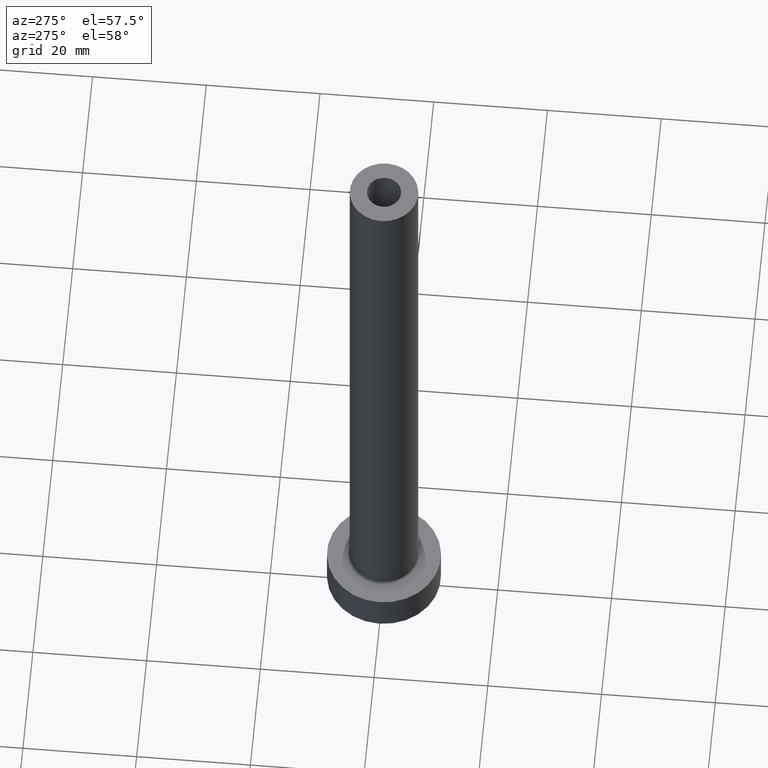
[diagram: clean part render]
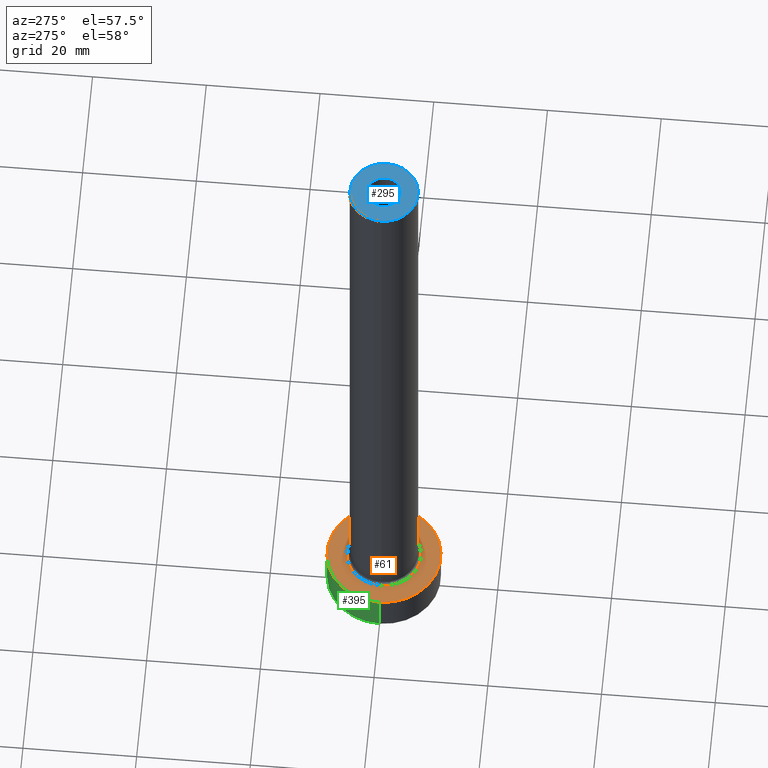
[diagram: same view with three faces highlighted in distinct colors, each labeled with its STEP entity id]
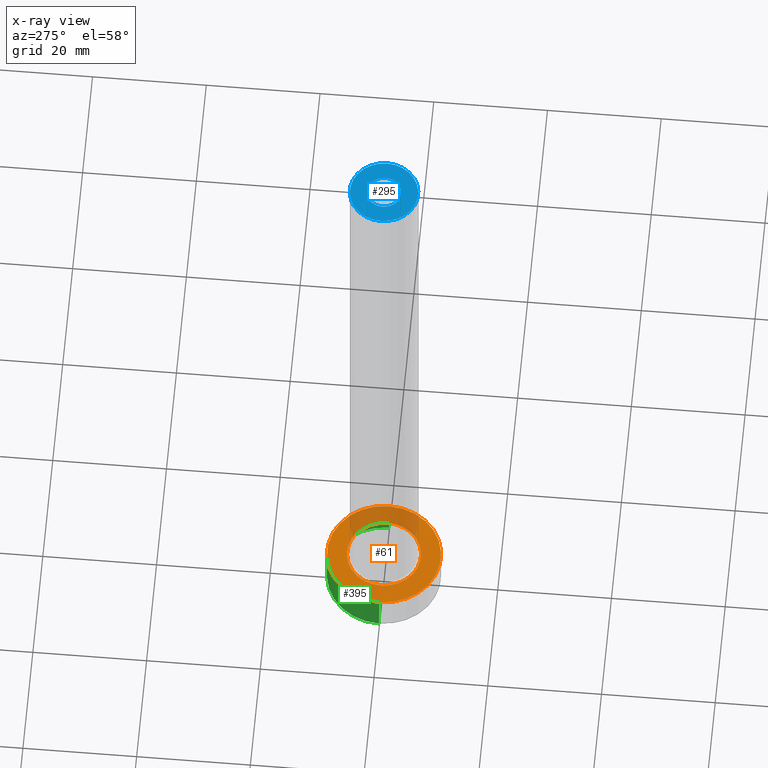
[diagram: x-ray of the same camera — body ghosted, the three highlighted faces saturated]
A machine part, auxiliary view with three faces highlighted in distinct colors.
The next image is the same camera in x-ray (body ghosted, the three faces saturated) — at least one of them is partly hidden behind the body in this view.
Their STEP definitions:

[orange] entity #61 — the highlighted planar face has unit normal (0, 0, 1).
#25 = PLANE ( 'NONE',  #260 ) ;
#48 = CIRCLE ( 'NONE', #320, 6.500000000000000888 ) ;
#50 = ORIENTED_EDGE ( 'NONE', *, *, #279, .T. ) ;
#51 = VERTEX_POINT ( 'NONE', #236 ) ;
#53 = CARTESIAN_POINT ( 'NONE',  ( 0.000000000000000000, 0.000000000000000000, 7.000000000000000000 ) ) ;
#61 = ADVANCED_FACE ( 'NONE', ( #412, #96 ), #25, .T. ) ;
#76 = VERTEX_POINT ( 'NONE', #169 ) ;
#84 = CARTESIAN_POINT ( 'NONE',  ( -10.00000000000000000, 0.000000000000000000, 7.000000000000000000 ) ) ;
#95 = DIRECTION ( 'NONE',  ( 0.000000000000000000, 0.000000000000000000, 1.000000000000000000 ) ) ;
#96 = FACE_OUTER_BOUND ( 'NONE', #121, .T. ) ;
#121 = EDGE_LOOP ( 'NONE', ( #447, #367 ) ) ;
#127 = CIRCLE ( 'NONE', #362, 6.500000000000000888 ) ;
#129 = AXIS2_PLACEMENT_3D ( 'NONE', #312, #95, #411 ) ;
#150 = DIRECTION ( 'NONE',  ( -0.000000000000000000, -0.000000000000000000, -1.000000000000000000 ) ) ;
#169 = CARTESIAN_POINT ( 'NONE',  ( -6.500000000000000888, 7.960204194457796463E-16, 7.000000000000002665 ) ) ;
#198 = DIRECTION ( 'NONE',  ( 0.000000000000000000, 0.000000000000000000, 1.000000000000000000 ) ) ;
#200 = DIRECTION ( 'NONE',  ( 1.000000000000000000, 0.000000000000000000, -0.000000000000000000 ) ) ;
#201 = EDGE_CURVE ( 'NONE', #274, #51, #403, .T. ) ;
#215 = DIRECTION ( 'NONE',  ( 1.000000000000000000, 0.000000000000000000, 0.000000000000000000 ) ) ;
#227 = VERTEX_POINT ( 'NONE', #287 ) ;
#232 = EDGE_CURVE ( 'NONE', #76, #227, #48, .T. ) ;
#236 = CARTESIAN_POINT ( 'NONE',  ( 10.00000000000000000, 1.224646799147353256E-15, 7.000000000000000000 ) ) ;
#237 = EDGE_LOOP ( 'NONE', ( #50, #423 ) ) ;
#248 = DIRECTION ( 'NONE',  ( 1.000000000000000000, 0.000000000000000000, 0.000000000000000000 ) ) ;
#260 = AXIS2_PLACEMENT_3D ( 'NONE', #53, #198, #200 ) ;
#274 = VERTEX_POINT ( 'NONE', #84 ) ;
#279 = EDGE_CURVE ( 'NONE', #227, #76, #127, .T. ) ;
#287 = CARTESIAN_POINT ( 'NONE',  ( 6.500000000000000888, 0.000000000000000000, 7.000000000000002665 ) ) ;
#288 = CARTESIAN_POINT ( 'NONE',  ( 0.000000000000000000, 0.000000000000000000, 7.000000000000000000 ) ) ;
#312 = CARTESIAN_POINT ( 'NONE',  ( 0.000000000000000000, 0.000000000000000000, 7.000000000000000000 ) ) ;
#320 = AXIS2_PLACEMENT_3D ( 'NONE', #355, #150, #248 ) ;
#322 = CIRCLE ( 'NONE', #129, 10.00000000000000000 ) ;
#331 = DIRECTION ( 'NONE',  ( 1.000000000000000000, 0.000000000000000000, 0.000000000000000000 ) ) ;
#350 = AXIS2_PLACEMENT_3D ( 'NONE', #288, #387, #215 ) ;
#355 = CARTESIAN_POINT ( 'NONE',  ( 0.000000000000000000, 0.000000000000000000, 7.000000000000000000 ) ) ;
#361 = EDGE_CURVE ( 'NONE', #51, #274, #322, .T. ) ;
#362 = AXIS2_PLACEMENT_3D ( 'NONE', #434, #405, #331 ) ;
#367 = ORIENTED_EDGE ( 'NONE', *, *, #361, .T. ) ;
#387 = DIRECTION ( 'NONE',  ( 0.000000000000000000, 0.000000000000000000, 1.000000000000000000 ) ) ;
#403 = CIRCLE ( 'NONE', #350, 10.00000000000000000 ) ;
#405 = DIRECTION ( 'NONE',  ( -0.000000000000000000, -0.000000000000000000, -1.000000000000000000 ) ) ;
#411 = DIRECTION ( 'NONE',  ( 1.000000000000000000, 0.000000000000000000, 0.000000000000000000 ) ) ;
#412 = FACE_BOUND ( 'NONE', #237, .T. ) ;
#423 = ORIENTED_EDGE ( 'NONE', *, *, #232, .T. ) ;
#434 = CARTESIAN_POINT ( 'NONE',  ( 0.000000000000000000, 0.000000000000000000, 7.000000000000000000 ) ) ;
#447 = ORIENTED_EDGE ( 'NONE', *, *, #201, .T. ) ;

[blue] entity #295 — the highlighted planar face has unit normal (0, 0, 1).
#19 = AXIS2_PLACEMENT_3D ( 'NONE', #156, #424, #393 ) ;
#32 = CARTESIAN_POINT ( 'NONE',  ( 0.000000000000000000, 0.000000000000000000, 125.0000000000000000 ) ) ;
#34 = CARTESIAN_POINT ( 'NONE',  ( 0.000000000000000000, 0.000000000000000000, 125.0000000000000000 ) ) ;
#64 = DIRECTION ( 'NONE',  ( 1.000000000000000000, 0.000000000000000000, 0.000000000000000000 ) ) ;
#70 = DIRECTION ( 'NONE',  ( 1.000000000000000000, 0.000000000000000000, 0.000000000000000000 ) ) ;
#81 = PLANE ( 'NONE',  #441 ) ;
#83 = CIRCLE ( 'NONE', #223, 6.000000000000000888 ) ;
#104 = DIRECTION ( 'NONE',  ( 0.000000000000000000, 0.000000000000000000, 1.000000000000000000 ) ) ;
#142 = EDGE_LOOP ( 'NONE', ( #193, #245 ) ) ;
#156 = CARTESIAN_POINT ( 'NONE',  ( 0.000000000000000000, 0.000000000000000000, 125.0000000000000000 ) ) ;
#158 = EDGE_CURVE ( 'NONE', #240, #160, #202, .T. ) ;
#160 = VERTEX_POINT ( 'NONE', #358 ) ;
#164 = CARTESIAN_POINT ( 'NONE',  ( 0.000000000000000000, 0.000000000000000000, 125.0000000000000000 ) ) ;
#168 = AXIS2_PLACEMENT_3D ( 'NONE', #164, #299, #437 ) ;
#184 = DIRECTION ( 'NONE',  ( 0.000000000000000000, 0.000000000000000000, 1.000000000000000000 ) ) ;
#193 = ORIENTED_EDGE ( 'NONE', *, *, #239, .T. ) ;
#199 = ORIENTED_EDGE ( 'NONE', *, *, #318, .F. ) ;
#202 = CIRCLE ( 'NONE', #455, 3.000000000000000444 ) ;
#217 = CARTESIAN_POINT ( 'NONE',  ( -6.000000000000000888, 0.000000000000000000, 125.0000000000000000 ) ) ;
#218 = VERTEX_POINT ( 'NONE', #217 ) ;
#223 = AXIS2_PLACEMENT_3D ( 'NONE', #32, #104, #64 ) ;
#230 = CIRCLE ( 'NONE', #19, 6.000000000000000888 ) ;
#235 = DIRECTION ( 'NONE',  ( 1.000000000000000000, 0.000000000000000000, -0.000000000000000000 ) ) ;
#239 = EDGE_CURVE ( 'NONE', #218, #349, #83, .T. ) ;
#240 = VERTEX_POINT ( 'NONE', #461 ) ;
#245 = ORIENTED_EDGE ( 'NONE', *, *, #436, .T. ) ;
#263 = EDGE_LOOP ( 'NONE', ( #199, #383 ) ) ;
#266 = DIRECTION ( 'NONE',  ( 0.000000000000000000, 0.000000000000000000, 1.000000000000000000 ) ) ;
#295 = ADVANCED_FACE ( 'NONE', ( #401, #397 ), #81, .T. ) ;
#299 = DIRECTION ( 'NONE',  ( 0.000000000000000000, 0.000000000000000000, 1.000000000000000000 ) ) ;
#318 = EDGE_CURVE ( 'NONE', #160, #240, #420, .T. ) ;
#349 = VERTEX_POINT ( 'NONE', #446 ) ;
#358 = CARTESIAN_POINT ( 'NONE',  ( -3.000000000000000444, 0.000000000000000000, 125.0000000000000000 ) ) ;
#366 = CARTESIAN_POINT ( 'NONE',  ( 0.000000000000000000, 0.000000000000000000, 125.0000000000000000 ) ) ;
#383 = ORIENTED_EDGE ( 'NONE', *, *, #158, .F. ) ;
#393 = DIRECTION ( 'NONE',  ( 1.000000000000000000, 0.000000000000000000, 0.000000000000000000 ) ) ;
#397 = FACE_OUTER_BOUND ( 'NONE', #142, .T. ) ;
#401 = FACE_BOUND ( 'NONE', #263, .T. ) ;
#420 = CIRCLE ( 'NONE', #168, 3.000000000000000444 ) ;
#424 = DIRECTION ( 'NONE',  ( 0.000000000000000000, 0.000000000000000000, 1.000000000000000000 ) ) ;
#436 = EDGE_CURVE ( 'NONE', #349, #218, #230, .T. ) ;
#437 = DIRECTION ( 'NONE',  ( 1.000000000000000000, 0.000000000000000000, 0.000000000000000000 ) ) ;
#441 = AXIS2_PLACEMENT_3D ( 'NONE', #366, #266, #235 ) ;
#446 = CARTESIAN_POINT ( 'NONE',  ( 6.000000000000000888, 7.347880794884120722E-16, 125.0000000000000000 ) ) ;
#455 = AXIS2_PLACEMENT_3D ( 'NONE', #34, #184, #70 ) ;
#461 = CARTESIAN_POINT ( 'NONE',  ( 3.000000000000000444, 3.673940397442059868E-16, 125.0000000000000000 ) ) ;

[green] entity #395 — the highlighted cylindrical surface (partial cylindrical patch) has radius 10 mm, axis along (-0, -0, -1).
#27 = AXIS2_PLACEMENT_3D ( 'NONE', #178, #346, #351 ) ;
#51 = VERTEX_POINT ( 'NONE', #236 ) ;
#57 = CYLINDRICAL_SURFACE ( 'NONE', #363, 10.00000000000000000 ) ;
#62 = ORIENTED_EDGE ( 'NONE', *, *, #330, .F. ) ;
#84 = CARTESIAN_POINT ( 'NONE',  ( -10.00000000000000000, 0.000000000000000000, 7.000000000000000000 ) ) ;
#95 = DIRECTION ( 'NONE',  ( 0.000000000000000000, 0.000000000000000000, 1.000000000000000000 ) ) ;
#97 = CARTESIAN_POINT ( 'NONE',  ( 0.000000000000000000, 0.000000000000000000, 7.000000000000000000 ) ) ;
#129 = AXIS2_PLACEMENT_3D ( 'NONE', #312, #95, #411 ) ;
#130 = ORIENTED_EDGE ( 'NONE', *, *, #136, .T. ) ;
#133 = DIRECTION ( 'NONE',  ( -0.000000000000000000, -0.000000000000000000, -1.000000000000000000 ) ) ;
#136 = EDGE_CURVE ( 'NONE', #51, #233, #319, .T. ) ;
#140 = ORIENTED_EDGE ( 'NONE', *, *, #361, .F. ) ;
#153 = CARTESIAN_POINT ( 'NONE',  ( 10.00000000000000000, 1.224646799147353256E-15, 7.000000000000000000 ) ) ;
#178 = CARTESIAN_POINT ( 'NONE',  ( 0.000000000000000000, 0.000000000000000000, 0.000000000000000000 ) ) ;
#204 = DIRECTION ( 'NONE',  ( -1.000000000000000000, 0.000000000000000000, 0.000000000000000000 ) ) ;
#209 = EDGE_LOOP ( 'NONE', ( #140, #130, #302, #62 ) ) ;
#211 = CARTESIAN_POINT ( 'NONE',  ( -10.00000000000000000, 0.000000000000000000, 0.000000000000000000 ) ) ;
#214 = DIRECTION ( 'NONE',  ( -0.000000000000000000, -0.000000000000000000, -1.000000000000000000 ) ) ;
#233 = VERTEX_POINT ( 'NONE', #385 ) ;
#236 = CARTESIAN_POINT ( 'NONE',  ( 10.00000000000000000, 1.224646799147353256E-15, 7.000000000000000000 ) ) ;
#244 = VERTEX_POINT ( 'NONE', #211 ) ;
#274 = VERTEX_POINT ( 'NONE', #84 ) ;
#277 = CARTESIAN_POINT ( 'NONE',  ( -10.00000000000000000, 0.000000000000000000, 7.000000000000000000 ) ) ;
#302 = ORIENTED_EDGE ( 'NONE', *, *, #339, .T. ) ;
#307 = LINE ( 'NONE', #277, #391 ) ;
#312 = CARTESIAN_POINT ( 'NONE',  ( 0.000000000000000000, 0.000000000000000000, 7.000000000000000000 ) ) ;
#319 = LINE ( 'NONE', #153, #377 ) ;
#322 = CIRCLE ( 'NONE', #129, 10.00000000000000000 ) ;
#330 = EDGE_CURVE ( 'NONE', #274, #244, #307, .T. ) ;
#339 = EDGE_CURVE ( 'NONE', #233, #244, #432, .T. ) ;
#346 = DIRECTION ( 'NONE',  ( 0.000000000000000000, 0.000000000000000000, 1.000000000000000000 ) ) ;
#351 = DIRECTION ( 'NONE',  ( 1.000000000000000000, 0.000000000000000000, 0.000000000000000000 ) ) ;
#361 = EDGE_CURVE ( 'NONE', #51, #274, #322, .T. ) ;
#363 = AXIS2_PLACEMENT_3D ( 'NONE', #97, #214, #204 ) ;
#377 = VECTOR ( 'NONE', #425, 1000.000000000000000 ) ;
#385 = CARTESIAN_POINT ( 'NONE',  ( 10.00000000000000000, 1.224646799147353256E-15, 0.000000000000000000 ) ) ;
#391 = VECTOR ( 'NONE', #133, 1000.000000000000000 ) ;
#395 = ADVANCED_FACE ( 'NONE', ( #413 ), #57, .T. ) ;
#411 = DIRECTION ( 'NONE',  ( 1.000000000000000000, 0.000000000000000000, 0.000000000000000000 ) ) ;
#413 = FACE_OUTER_BOUND ( 'NONE', #209, .T. ) ;
#425 = DIRECTION ( 'NONE',  ( -0.000000000000000000, -0.000000000000000000, -1.000000000000000000 ) ) ;
#432 = CIRCLE ( 'NONE', #27, 10.00000000000000000 ) ;